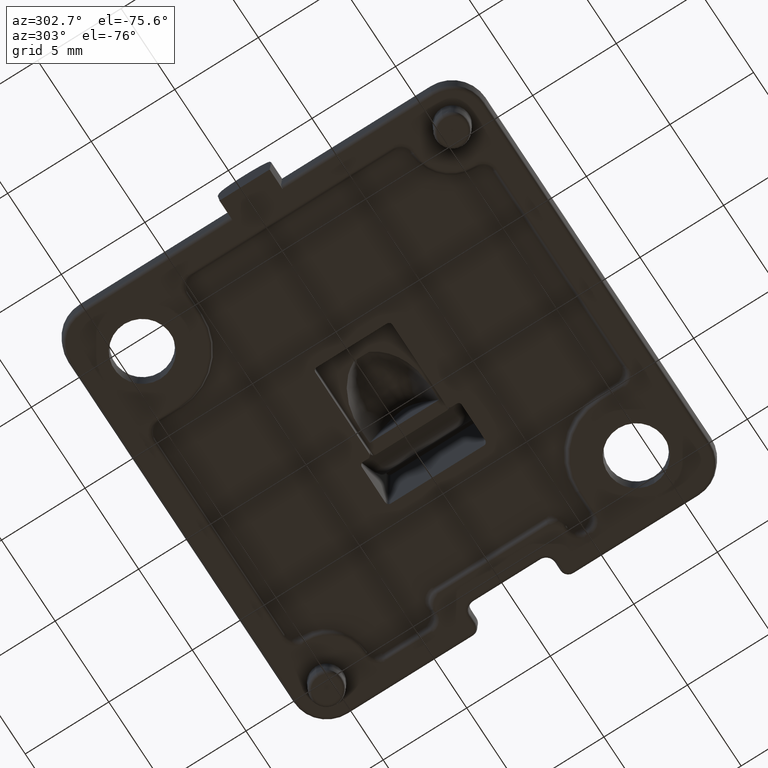
[diagram: clean part render]
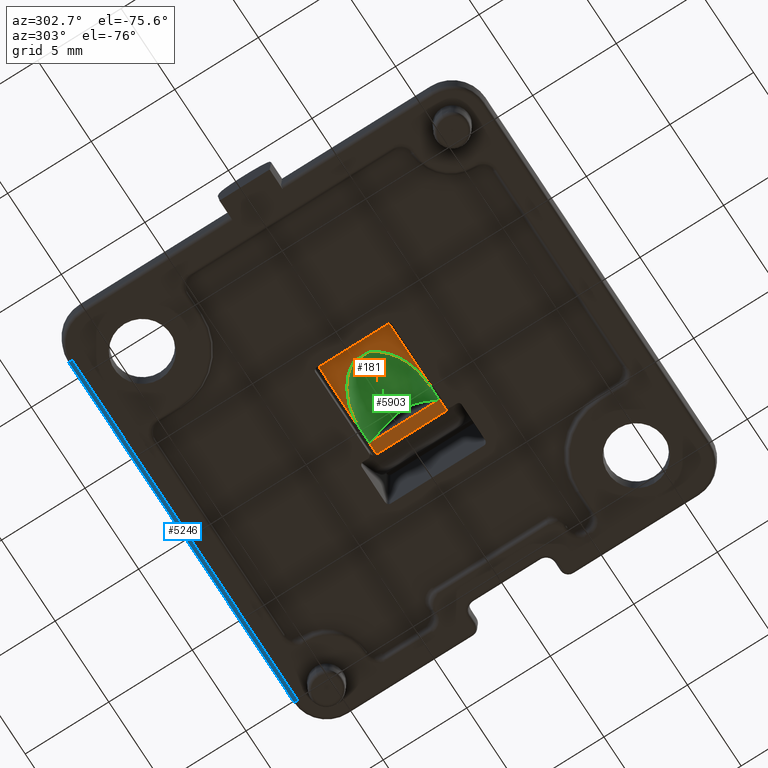
[diagram: same view with three faces highlighted in distinct colors, each labeled with its STEP entity id]
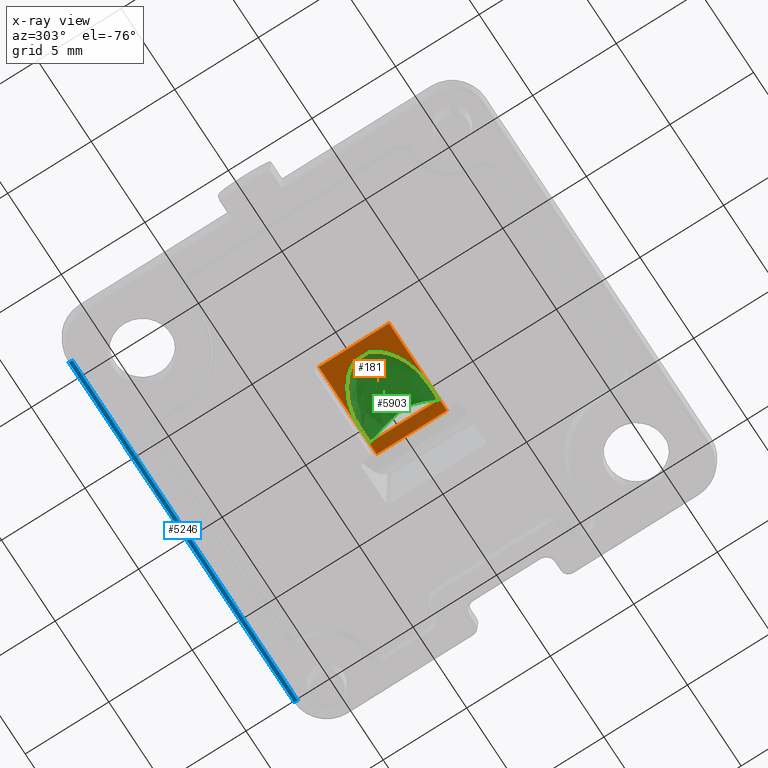
[diagram: x-ray of the same camera — body ghosted, the three highlighted faces saturated]
A machine part, auxiliary view with three faces highlighted in distinct colors.
The next image is the same camera in x-ray (body ghosted, the three faces saturated) — at least one of them is partly hidden behind the body in this view.
Their STEP definitions:

[orange] entity #181 — the highlighted planar face has unit normal (-0, 0, 1).
#21 = ORIENTED_EDGE ( 'NONE', *, *, #675, .F. ) ;
#98 = FACE_OUTER_BOUND ( 'NONE', #4128, .T. ) ;
#106 = ORIENTED_EDGE ( 'NONE', *, *, #2377, .F. ) ;
#132 = CARTESIAN_POINT ( 'NONE',  ( -2.551362578313829400, -0.5375325873398650900, 1.000000001384908600 ) ) ;
#160 = CARTESIAN_POINT ( 'NONE',  ( 0.4398654048756106500, -2.089124009935294800, 1.000000000000000000 ) ) ;
#181 = ADVANCED_FACE ( 'NONE', ( #98, #4840 ), #6382, .F. ) ;
#288 = DIRECTION ( 'NONE',  ( 0.0000000000000000000, 1.000000000000000000, -0.0000000000000000000 ) ) ;
#438 = CARTESIAN_POINT ( 'NONE',  ( 0.4416346818592206700, 2.089128448559774800, 1.000000000000000200 ) ) ;
#467 = CARTESIAN_POINT ( 'NONE',  ( -2.505399132952214700, 0.6226615378636016800, 1.000000000000000400 ) ) ;
#526 = CARTESIAN_POINT ( 'NONE',  ( 2.083844977349171400, -2.099999999999998300, 1.000000000000000000 ) ) ;
#675 = EDGE_CURVE ( 'NONE', #2649, #4487, #7455, .T. ) ;
#772 = CARTESIAN_POINT ( 'NONE',  ( 1.015943396140486900, -2.084362827228719400, 1.000000000000000700 ) ) ;
#929 = ORIENTED_EDGE ( 'NONE', *, *, #5980, .T. ) ;
#1055 = CARTESIAN_POINT ( 'NONE',  ( -0.1314247581270658000, 2.050216328691501400, 1.000000000000000400 ) ) ;
#1083 = CARTESIAN_POINT ( 'NONE',  ( -2.600000000000001000, 0.4555592982445399500, 1.000000001387453900 ) ) ;
#1090 = EDGE_CURVE ( 'NONE', #5385, #7040, #4049, .T. ) ;
#1124 = CARTESIAN_POINT ( 'NONE',  ( 2.083844977349171400, -3.000000000000000000, 1.000000000000000000 ) ) ;
#1360 = CARTESIAN_POINT ( 'NONE',  ( -2.505759766047883600, -0.6219903945672702300, 1.000000000000000000 ) ) ;
#1388 = CARTESIAN_POINT ( 'NONE',  ( 1.400000000000000100, -2.078827333284483100, 1.000003078068502300 ) ) ;
#1491 = ORIENTED_EDGE ( 'NONE', *, *, #1090, .T. ) ;
#1569 = DIRECTION ( 'NONE',  ( 0.0000000000000000000, -1.000000000000000000, 0.0000000000000000000 ) ) ;
#1672 = CARTESIAN_POINT ( 'NONE',  ( -0.6929354770036748600, 1.930882499256594100, 1.000000000000000000 ) ) ;
#1741 = DIRECTION ( 'NONE',  ( 0.0000000000000000000, 1.000000000000000000, 0.0000000000000000000 ) ) ;
#1773 = ORIENTED_EDGE ( 'NONE', *, *, #2830, .T. ) ;
#1885 = VERTEX_POINT ( 'NONE', #7165 ) ;
#1983 = CARTESIAN_POINT ( 'NONE',  ( -2.349437699600407400, -0.8594847207898653800, 1.000000000000634800 ) ) ;
#2166 = DIRECTION ( 'NONE',  ( -0.0000000000000000000, 0.0000000000000000000, 1.000000000000000000 ) ) ;
#2170 = VERTEX_POINT ( 'NONE', #3325 ) ;
#2188 = DIRECTION ( 'NONE',  ( 0.0000000000000000000, 1.000000000000000000, 0.0000000000000000000 ) ) ;
#2194 = CARTESIAN_POINT ( 'NONE',  ( -3.299999999999999800, 2.100000000000000500, 1.000000000000000000 ) ) ;
#2288 = CARTESIAN_POINT ( 'NONE',  ( -1.224724005008662300, 1.732614029141649600, 0.9999999999999997800 ) ) ;
#2377 = EDGE_CURVE ( 'NONE', #3214, #1885, #5495, .T. ) ;
#2449 = ORIENTED_EDGE ( 'NONE', *, *, #7025, .F. ) ;
#2601 = CARTESIAN_POINT ( 'NONE',  ( -2.032606626245931000, -1.210368962242489600, 0.9999999999999983300 ) ) ;
#2649 = VERTEX_POINT ( 'NONE', #3892 ) ;
#2830 = EDGE_CURVE ( 'NONE', #2170, #4487, #3062, .T. ) ;
#2879 = CARTESIAN_POINT ( 'NONE',  ( 1.399999999999999900, 2.078822441818898100, 1.000000000000000000 ) ) ;
#2908 = CARTESIAN_POINT ( 'NONE',  ( -1.724738149197306800, 1.450752585485082200, 1.000000000000000200 ) ) ;
#3062 = B_SPLINE_CURVE_WITH_KNOTS ( 'NONE', 3,
 ( #2879, #7240, #7860, #4140, #438, #4759, #1055, #5393, #1672, #6019, #2288, #6647, #2908, #7260, #3541, #7889, #4170, #467, #4791, #1083 ),
 .UNSPECIFIED., .F., .F.,
 ( 4, 2, 2, 2, 2, 2, 2, 2, 2, 4 ),
 ( 0.0000000000000000000, 0.0005749200755589800000, 0.001149840151117960000, 0.001724760226676940100, 0.002299680302235920000, 0.002874600377794900100, 0.003449520453353880200, 0.004024440528912859500, 0.004311900566692349800, 0.004599360604471838300 ),
 .UNSPECIFIED. ) ;
#3214 = VERTEX_POINT ( 'NONE', #526 ) ;
#3221 = CARTESIAN_POINT ( 'NONE',  ( -1.237978495784666900, -1.742455570495600400, 0.9999999999999997800 ) ) ;
#3325 = CARTESIAN_POINT ( 'NONE',  ( 1.399999999999999900, 2.078822441818898100, 1.000000000000000000 ) ) ;
#3541 = CARTESIAN_POINT ( 'NONE',  ( -2.163970747072603300, 1.085853524967739900, 0.9999999999999749100 ) ) ;
#3547 = CARTESIAN_POINT ( 'NONE',  ( 1.400000000000000100, -2.078827333284483100, 1.000003078068502300 ) ) ;
#3855 = CARTESIAN_POINT ( 'NONE',  ( -0.1361482349535843800, -2.061044881113214700, 1.000000000000000000 ) ) ;
#3892 = CARTESIAN_POINT ( 'NONE',  ( -2.599999999999998300, -0.4555441747628767300, 1.000000001384908600 ) ) ;
#4004 = VECTOR ( 'NONE', #7774, 1000.000000000000000 ) ;
#4049 = LINE ( 'NONE', #4621, #7360 ) ;
#4122 = LINE ( 'NONE', #7833, #7233 ) ;
#4128 = EDGE_LOOP ( 'NONE', ( #106, #929, #1491, #6622 ) ) ;
#4140 = CARTESIAN_POINT ( 'NONE',  ( 0.6334677064043052800, 2.088556711479546000, 0.9999999999999993300 ) ) ;
#4170 = CARTESIAN_POINT ( 'NONE',  ( -2.403030146143409200, 0.7846258030463363300, 1.000000000000000400 ) ) ;
#4254 = EDGE_CURVE ( 'NONE', #7040, #1885, #4122, .T. ) ;
#4448 = CARTESIAN_POINT ( 'NONE',  ( -2.599999999999998300, -0.4555441747628767300, 1.000000001384908600 ) ) ;
#4480 = CARTESIAN_POINT ( 'NONE',  ( 0.6318893846323526700, -2.088566448932226200, 1.000000000000000700 ) ) ;
#4486 = CARTESIAN_POINT ( 'NONE',  ( -2.600000000000001000, 0.4555592982445399500, 1.000000001387453900 ) ) ;
#4487 = VERTEX_POINT ( 'NONE', #4486 ) ;
#4621 = CARTESIAN_POINT ( 'NONE',  ( -3.299999999999999800, 2.300000000000000700, 1.000000000000000000 ) ) ;
#4659 = CARTESIAN_POINT ( 'NONE',  ( 1.399999999999999900, 0.0000000000000000000, 1.000000000000000000 ) ) ;
#4759 = CARTESIAN_POINT ( 'NONE',  ( 0.05874868516591804500, 2.070626627170135700, 1.000000000000000200 ) ) ;
#4791 = CARTESIAN_POINT ( 'NONE',  ( -2.551067681225207600, 0.5380310598972224400, 1.000000000000000900 ) ) ;
#4840 = FACE_BOUND ( 'NONE', #7395, .T. ) ;
#5030 = AXIS2_PLACEMENT_3D ( 'NONE', #5153, #2166, #6519 ) ;
#5110 = CARTESIAN_POINT ( 'NONE',  ( 1.207972528265164100, -2.081175870839364200, 0.9999999999999950000 ) ) ;
#5153 = CARTESIAN_POINT ( 'NONE',  ( 0.0000000000000000000, 0.0000000000000000000, 1.000000000000000000 ) ) ;
#5309 = CARTESIAN_POINT ( 'NONE',  ( -3.500000000000000000, -2.099999999999999600, 1.000000000000000000 ) ) ;
#5315 = CARTESIAN_POINT ( 'NONE',  ( -2.600000000000000100, 0.7142934504074105500, 1.000000000000000000 ) ) ;
#5385 = VERTEX_POINT ( 'NONE', #7156 ) ;
#5393 = CARTESIAN_POINT ( 'NONE',  ( -0.5083900547786782700, 1.979671559242213400, 1.000000000000000400 ) ) ;
#5495 = LINE ( 'NONE', #1124, #7146 ) ;
#5706 = CARTESIAN_POINT ( 'NONE',  ( -2.404371813912273800, -0.7826202028996044300, 1.000000000000000200 ) ) ;
#5738 = LINE ( 'NONE', #4659, #7583 ) ;
#5809 = VECTOR ( 'NONE', #2188, 1000.000000000000000 ) ;
#5980 = EDGE_CURVE ( 'NONE', #3214, #5385, #7114, .T. ) ;
#6019 = CARTESIAN_POINT ( 'NONE',  ( -1.050817415593900300, 1.807387945257196600, 1.000000000000000000 ) ) ;
#6331 = CARTESIAN_POINT ( 'NONE',  ( -2.170533345352927000, -1.078602849958401300, 1.000000000000634800 ) ) ;
#6382 = PLANE ( 'NONE',  #5030 ) ;
#6445 = EDGE_CURVE ( 'NONE', #2649, #7714, #6746, .T. ) ;
#6519 = DIRECTION ( 'NONE',  ( 1.000000000000000000, 0.0000000000000000000, 0.0000000000000000000 ) ) ;
#6622 = ORIENTED_EDGE ( 'NONE', *, *, #4254, .T. ) ;
#6623 = DIRECTION ( 'NONE',  ( 1.000000000000000000, 1.376764663473656700E-016, -0.0000000000000000000 ) ) ;
#6647 = CARTESIAN_POINT ( 'NONE',  ( -1.561511833604804400, 1.554537706405162600, 0.9999999999999995600 ) ) ;
#6703 = ORIENTED_EDGE ( 'NONE', *, *, #6445, .T. ) ;
#6746 = B_SPLINE_CURVE_WITH_KNOTS ( 'NONE', 3,
 ( #4448, #132, #1360, #5706, #1983, #6331, #2601, #6958, #3221, #7576, #3855, #160, #4480, #772, #5110, #1388 ),
 .UNSPECIFIED., .F., .F.,
 ( 4, 2, 2, 2, 2, 2, 2, 4 ),
 ( 0.0000000000000000000, 0.0002828768409019454500, 0.0005657536818038909100, 0.001131507363607781800, 0.002263014727215564500, 0.003394522090823346800, 0.003960275772627238300, 0.004526029454431129900 ),
 .UNSPECIFIED. ) ;
#6958 = CARTESIAN_POINT ( 'NONE',  ( -1.577541181476175100, -1.566638844034883500, 0.9999999999999985600 ) ) ;
#7025 = EDGE_CURVE ( 'NONE', #2170, #7714, #5738, .T. ) ;
#7040 = VERTEX_POINT ( 'NONE', #2194 ) ;
#7114 = LINE ( 'NONE', #5309, #4004 ) ;
#7146 = VECTOR ( 'NONE', #1741, 1000.000000000000000 ) ;
#7156 = CARTESIAN_POINT ( 'NONE',  ( -3.299999999999999800, -2.099999999999999600, 1.000000000000000000 ) ) ;
#7165 = CARTESIAN_POINT ( 'NONE',  ( 2.083844977349171400, 2.100000000000001900, 1.000000000000000000 ) ) ;
#7233 = VECTOR ( 'NONE', #6623, 1000.000000000000000 ) ;
#7240 = CARTESIAN_POINT ( 'NONE',  ( 1.208366613020389600, 2.081170960081868900, 0.9999999999991812100 ) ) ;
#7260 = CARTESIAN_POINT ( 'NONE',  ( -2.024893220620447300, 1.217024777793791500, 1.000000000000000000 ) ) ;
#7360 = VECTOR ( 'NONE', #288, 1000.000000000000000 ) ;
#7395 = EDGE_LOOP ( 'NONE', ( #6703, #2449, #1773, #21 ) ) ;
#7455 = LINE ( 'NONE', #5315, #5809 ) ;
#7576 = CARTESIAN_POINT ( 'NONE',  ( -0.5119351141686814300, -1.993686842024795100, 1.000000000000000200 ) ) ;
#7583 = VECTOR ( 'NONE', #1569, 1000.000000000000000 ) ;
#7714 = VERTEX_POINT ( 'NONE', #3547 ) ;
#7774 = DIRECTION ( 'NONE',  ( -1.000000000000000000, -2.065146995210484700E-016, 0.0000000000000000000 ) ) ;
#7833 = CARTESIAN_POINT ( 'NONE',  ( -2.891205793294680800E-016, 2.100000000000001000, 1.000000000000000000 ) ) ;
#7860 = CARTESIAN_POINT ( 'NONE',  ( 1.016735989526128500, 2.084346495771741000, 0.9999999999999993300 ) ) ;
#7889 = CARTESIAN_POINT ( 'NONE',  ( -2.347229598586235700, 0.8625547943504097100, 0.9999999999999751300 ) ) ;

[blue] entity #5246 — the highlighted cylindrical surface (edge-blend (fillet) strip) has radius 0.25 mm, axis along (1, -0, 0).
#77 = DIRECTION ( 'NONE',  ( 0.0000000000000000000, 0.0000000000000000000, -1.000000000000000000 ) ) ;
#344 = LINE ( 'NONE', #2221, #5083 ) ;
#386 = EDGE_LOOP ( 'NONE', ( #4482, #7474, #5085, #4481 ) ) ;
#796 = DIRECTION ( 'NONE',  ( 1.000000000000000000, 0.0000000000000000000, 0.0000000000000000000 ) ) ;
#922 = CARTESIAN_POINT ( 'NONE',  ( 10.50000000000000000, 12.46652058966291000, 0.2412751258243749100 ) ) ;
#1146 = CARTESIAN_POINT ( 'NONE',  ( -10.50000000000000200, 12.21667288290813500, 0.0000000000000000000 ) ) ;
#1397 = EDGE_CURVE ( 'NONE', #7192, #4460, #7254, .T. ) ;
#1866 = EDGE_CURVE ( 'NONE', #4193, #4460, #6964, .T. ) ;
#2161 = CYLINDRICAL_SURFACE ( 'NONE', #6929, 0.2500000000000000000 ) ;
#2196 = DIRECTION ( 'NONE',  ( -1.000000000000000000, 0.0000000000000000000, 0.0000000000000000000 ) ) ;
#2221 = CARTESIAN_POINT ( 'NONE',  ( 10.49999999999999600, 12.21667288290813500, 0.0000000000000000000 ) ) ;
#2930 = VERTEX_POINT ( 'NONE', #5192 ) ;
#3295 = DIRECTION ( 'NONE',  ( 1.000000000000000000, -0.0000000000000000000, 0.0000000000000000000 ) ) ;
#3719 = CIRCLE ( 'NONE', #7917, 0.2500000000000000000 ) ;
#3763 = DIRECTION ( 'NONE',  ( 1.000000000000000000, 0.0000000000000000000, 0.0000000000000000000 ) ) ;
#4003 = AXIS2_PLACEMENT_3D ( 'NONE', #7489, #3763, #77 ) ;
#4193 = VERTEX_POINT ( 'NONE', #922 ) ;
#4460 = VERTEX_POINT ( 'NONE', #5053 ) ;
#4481 = ORIENTED_EDGE ( 'NONE', *, *, #4655, .F. ) ;
#4482 = ORIENTED_EDGE ( 'NONE', *, *, #1397, .T. ) ;
#4504 = CARTESIAN_POINT ( 'NONE',  ( 10.50000000000000000, 12.21667288290813500, 0.2500000000000000000 ) ) ;
#4655 = EDGE_CURVE ( 'NONE', #7192, #2930, #344, .T. ) ;
#4976 = EDGE_CURVE ( 'NONE', #2930, #4193, #3719, .T. ) ;
#5053 = CARTESIAN_POINT ( 'NONE',  ( -10.50000000000000200, 12.46652058966291000, 0.2412751258243749100 ) ) ;
#5083 = VECTOR ( 'NONE', #7200, 1000.000000000000000 ) ;
#5085 = ORIENTED_EDGE ( 'NONE', *, *, #4976, .F. ) ;
#5132 = DIRECTION ( 'NONE',  ( 0.0000000000000000000, 0.0000000000000000000, -1.000000000000000000 ) ) ;
#5192 = CARTESIAN_POINT ( 'NONE',  ( 10.50000000000000000, 12.21667288290813300, 0.0000000000000000000 ) ) ;
#5246 = ADVANCED_FACE ( 'NONE', ( #5467 ), #2161, .T. ) ;
#5467 = FACE_OUTER_BOUND ( 'NONE', #386, .T. ) ;
#6551 = CARTESIAN_POINT ( 'NONE',  ( -10.49999999999999800, 12.46652058966291000, 0.2412751258243747700 ) ) ;
#6773 = VECTOR ( 'NONE', #2196, 1000.000000000000000 ) ;
#6929 = AXIS2_PLACEMENT_3D ( 'NONE', #7029, #3295, #7653 ) ;
#6964 = LINE ( 'NONE', #6551, #6773 ) ;
#7029 = CARTESIAN_POINT ( 'NONE',  ( 0.0000000000000000000, 12.21667288290813500, 0.2500000000000000000 ) ) ;
#7192 = VERTEX_POINT ( 'NONE', #1146 ) ;
#7200 = DIRECTION ( 'NONE',  ( 1.000000000000000000, -0.0000000000000000000, -0.0000000000000000000 ) ) ;
#7254 = CIRCLE ( 'NONE', #4003, 0.2500000000000000000 ) ;
#7474 = ORIENTED_EDGE ( 'NONE', *, *, #1866, .F. ) ;
#7489 = CARTESIAN_POINT ( 'NONE',  ( -10.50000000000000200, 12.21667288290813700, 0.2500000000000000000 ) ) ;
#7653 = DIRECTION ( 'NONE',  ( 0.0000000000000000000, 0.0000000000000000000, -1.000000000000000000 ) ) ;
#7917 = AXIS2_PLACEMENT_3D ( 'NONE', #4504, #796, #5132 ) ;

[green] entity #5903 — the highlighted face is a freeform B-spline surface patch.
#35 = CARTESIAN_POINT ( 'NONE',  ( 1.399999999999998400, -1.034620056477093300, 2.706369694295176500 ) ) ;
#132 = CARTESIAN_POINT ( 'NONE',  ( -2.551362578313829400, -0.5375325873398650900, 1.000000001384908600 ) ) ;
#148 = CARTESIAN_POINT ( 'NONE',  ( -0.1904969153247295700, 0.06538948513618340900, 2.706643667075361300 ) ) ;
#160 = CARTESIAN_POINT ( 'NONE',  ( 0.4398654048756106500, -2.089124009935294800, 1.000000000000000000 ) ) ;
#175 = CARTESIAN_POINT ( 'NONE',  ( -1.594004322233279800, -0.1216709227126778500, 1.985412331033638700 ) ) ;
#194 = CARTESIAN_POINT ( 'NONE',  ( -2.328564381378580800, -0.2103456272117487100, 1.443528980120452700 ) ) ;
#224 = CARTESIAN_POINT ( 'NONE',  ( -2.599999999999999200, -0.3216530242028597400, 1.103147553051419900 ) ) ;
#240 = CARTESIAN_POINT ( 'NONE',  ( 1.400000000000001500, 1.965218559905656400, 1.200000000000000000 ) ) ;
#250 = CARTESIAN_POINT ( 'NONE',  ( 1.400000000000000800, -1.785018995701406700, 1.515402232516553000 ) ) ;
#276 = CARTESIAN_POINT ( 'NONE',  ( 0.8920790226710861900, -2.204164891798988900, 0.8158330841916560100 ) ) ;
#295 = CARTESIAN_POINT ( 'NONE',  ( 1.400000000000000100, -2.078827333284483100, 1.000003078068502300 ) ) ;
#328 = CARTESIAN_POINT ( 'NONE',  ( 1.400000000000000600, 1.059952119404315000E-012, 3.607365741558266500 ) ) ;
#379 = CARTESIAN_POINT ( 'NONE',  ( -1.856264670589807200, 1.597617297356509300, 0.8117922403130398700 ) ) ;
#401 = CARTESIAN_POINT ( 'NONE',  ( -2.452306224391981500, 0.7499618934863586700, 0.9848459703153188400 ) ) ;
#429 = CARTESIAN_POINT ( 'NONE',  ( -2.600000000000001400, 0.4141531136724342900, 1.037103924562102300 ) ) ;
#438 = CARTESIAN_POINT ( 'NONE',  ( 0.4416346818592206700, 2.089128448559774800, 1.000000000000000200 ) ) ;
#463 = CARTESIAN_POINT ( 'NONE',  ( 1.400000000000001900, 0.5897079925915302800, 3.251777779523302900 ) ) ;
#467 = CARTESIAN_POINT ( 'NONE',  ( -2.505399132952214700, 0.6226615378636016800, 1.000000000000000400 ) ) ;
#517 = ORIENTED_EDGE ( 'NONE', *, *, #2830, .F. ) ;
#519 = CARTESIAN_POINT ( 'NONE',  ( -2.596201636890921100, -0.3244178817043065200, 1.108770888052115700 ) ) ;
#556 = B_SPLINE_CURVE_WITH_KNOTS ( 'NONE', 3,
 ( #6567, #2203, #4729, #1028, #5358 ),
 .UNSPECIFIED., .F., .F.,
 ( 4, 1, 4 ),
 ( 0.09199499275522322900, 0.1249999833939984400, 0.1532564165732584500 ),
 .UNSPECIFIED. ) ;
#599 = CARTESIAN_POINT ( 'NONE',  ( 1.400000000000000600, 1.059952119404315000E-012, 3.607365741558266500 ) ) ;
#602 = CARTESIAN_POINT ( 'NONE',  ( 1.399999999999998100, 0.4192410327396390300, 3.414109711865772800 ) ) ;
#653 = CARTESIAN_POINT ( 'NONE',  ( 1.399999999999999700, -1.546009148568296700, 1.919305430619758100 ) ) ;
#760 = CARTESIAN_POINT ( 'NONE',  ( -2.316484497036492400, 0.02366848012338813200, 1.483515499724083400 ) ) ;
#772 = CARTESIAN_POINT ( 'NONE',  ( 1.015943396140486900, -2.084362827228719400, 1.000000000000000700 ) ) ;
#786 = CARTESIAN_POINT ( 'NONE',  ( -2.600000000000000100, -0.05655092375330610800, 1.197797949005783100 ) ) ;
#814 = CARTESIAN_POINT ( 'NONE',  ( 1.400000000000001700, -0.7975929199102480500, 3.017990566941854100 ) ) ;
#845 = CARTESIAN_POINT ( 'NONE',  ( 0.9075341961361643700, -1.314196266603316700, 2.100023376443845600 ) ) ;
#867 = CARTESIAN_POINT ( 'NONE',  ( -0.2013357124789100200, -1.940772643873703900, 1.482327859374230000 ) ) ;
#894 = CARTESIAN_POINT ( 'NONE',  ( -1.856264638536174300, -1.597617867988562000, 0.8117908884838813700 ) ) ;
#899 = B_SPLINE_CURVE_WITH_KNOTS ( 'NONE', 3,
 ( #2123, #5851, #2744, #4001, #295 ),
 .UNSPECIFIED., .F., .F.,
 ( 4, 1, 4 ),
 ( 0.8467498660023292700, 0.8749999833940244100, 0.9080054629422100700 ),
 .UNSPECIFIED. ) ;
#994 = CARTESIAN_POINT ( 'NONE',  ( -2.600000000000000100, 0.6933383294436894500, 0.7313916971084792900 ) ) ;
#1026 = CARTESIAN_POINT ( 'NONE',  ( 1.400000000000000100, 1.546012999241781300, 1.919299048403746400 ) ) ;
#1028 = CARTESIAN_POINT ( 'NONE',  ( 1.399999999999999700, 1.982735192571148500, 1.169278671004183400 ) ) ;
#1047 = CARTESIAN_POINT ( 'NONE',  ( 0.9064437069831898800, 1.047298138877854800, 2.448424700833253400 ) ) ;
#1055 = CARTESIAN_POINT ( 'NONE',  ( -0.1314247581270658000, 2.050216328691501400, 1.000000000000000400 ) ) ;
#1075 = CARTESIAN_POINT ( 'NONE',  ( -0.2032167972413854200, 0.6145222779348191700, 2.679182349381769200 ) ) ;
#1083 = CARTESIAN_POINT ( 'NONE',  ( -2.600000000000001000, 0.4555592982445399500, 1.000000001387453900 ) ) ;
#1102 = FACE_OUTER_BOUND ( 'NONE', #1370, .T. ) ;
#1138 = CARTESIAN_POINT ( 'NONE',  ( -2.592765254904172400, -0.08528706541143921100, 1.207175993001371000 ) ) ;
#1180 = CARTESIAN_POINT ( 'NONE',  ( 1.400000000000000600, -1.965248003363756900, 1.199993374040019300 ) ) ;
#1228 = CARTESIAN_POINT ( 'NONE',  ( 1.399999999999999900, 0.07822282566607888200, 3.607365741558453500 ) ) ;
#1267 = CARTESIAN_POINT ( 'NONE',  ( 1.400000000000000100, -1.905251482880876400, 1.305172604836144900 ) ) ;
#1360 = CARTESIAN_POINT ( 'NONE',  ( -2.505759766047883600, -0.6219903945672702300, 1.000000000000000000 ) ) ;
#1370 = EDGE_LOOP ( 'NONE', ( #517, #6803, #4400, #6912, #1628, #4520, #4798 ) ) ;
#1371 = CARTESIAN_POINT ( 'NONE',  ( 1.399999999999999900, -0.07822187543106891300, 3.607365741558453500 ) ) ;
#1388 = CARTESIAN_POINT ( 'NONE',  ( 1.400000000000000100, -2.078827333284483100, 1.000003078068502300 ) ) ;
#1403 = CARTESIAN_POINT ( 'NONE',  ( 0.8768279915767730500, -0.4234623280613563600, 3.106199468128606700 ) ) ;
#1424 = CARTESIAN_POINT ( 'NONE',  ( -0.2069944173161106800, -0.8807237367336955300, 2.597508529415770700 ) ) ;
#1448 = CARTESIAN_POINT ( 'NONE',  ( -1.720228464655341000, -1.126674720036460000, 1.829282045616710700 ) ) ;
#1479 = CARTESIAN_POINT ( 'NONE',  ( -2.452306403339364200, -0.7499532407282185600, 0.9848730516226496000 ) ) ;
#1511 = CARTESIAN_POINT ( 'NONE',  ( -2.600000000000000100, -0.6933383901988361400, 0.7313916060945853100 ) ) ;
#1606 = CARTESIAN_POINT ( 'NONE',  ( 0.8968679430016373000, 2.047697804081023900, 1.049077430098183100 ) ) ;
#1628 = ORIENTED_EDGE ( 'NONE', *, *, #3792, .T. ) ;
#1631 = CARTESIAN_POINT ( 'NONE',  ( -0.2045001659011044800, 1.737864180956010900, 1.838599155038944400 ) ) ;
#1664 = CARTESIAN_POINT ( 'NONE',  ( -1.684197341259471700, 0.8857521868609508100, 1.999250144198304200 ) ) ;
#1672 = CARTESIAN_POINT ( 'NONE',  ( -0.6929354770036748600, 1.930882499256594100, 1.000000000000000000 ) ) ;
#1694 = CARTESIAN_POINT ( 'NONE',  ( -2.328564741136760500, 0.2103602047467894900, 1.443528582433454700 ) ) ;
#1755 = CARTESIAN_POINT ( 'NONE',  ( -2.593568960710466200, 0.1698180014971683900, 1.184160869963296200 ) ) ;
#1817 = CARTESIAN_POINT ( 'NONE',  ( 1.400000000000001500, 1.965218559905656400, 1.200000000000000000 ) ) ;
#1965 = CARTESIAN_POINT ( 'NONE',  ( 0.8627439943164898500, 0.2319137040299061000, 3.239130603068029100 ) ) ;
#1983 = CARTESIAN_POINT ( 'NONE',  ( -2.349437699600407400, -0.8594847207898653800, 1.000000000000634800 ) ) ;
#1998 = CARTESIAN_POINT ( 'NONE',  ( -0.1904968909609777700, -0.06538952473467764300, 2.706643669545583100 ) ) ;
#2023 = CARTESIAN_POINT ( 'NONE',  ( -1.611666540089150100, -0.2744768857620216200, 2.038710112855379700 ) ) ;
#2047 = CARTESIAN_POINT ( 'NONE',  ( -2.340817800495386800, -0.3004464467159115300, 1.403270292878707500 ) ) ;
#2077 = CARTESIAN_POINT ( 'NONE',  ( -2.599999999999997400, -0.4141210978205535100, 1.037106039254715600 ) ) ;
#2102 = CARTESIAN_POINT ( 'NONE',  ( 1.399999999999999900, -2.018125358602086200, 1.108037108266355600 ) ) ;
#2123 = CARTESIAN_POINT ( 'NONE',  ( 1.400000000000000600, -1.965248003363756900, 1.199993374040019300 ) ) ;
#2126 = CARTESIAN_POINT ( 'NONE',  ( 0.8896845646438955600, -2.283795595275887700, 0.6999999999999998400 ) ) ;
#2170 = VERTEX_POINT ( 'NONE', #3325 ) ;
#2202 = CARTESIAN_POINT ( 'NONE',  ( -0.1941838174687763900, 2.212256970444276000, 0.7000000000000001800 ) ) ;
#2203 = CARTESIAN_POINT ( 'NONE',  ( 1.399999999999999500, 2.058459521844546300, 1.035938571552278600 ) ) ;
#2224 = CARTESIAN_POINT ( 'NONE',  ( -1.833714509957632900, 1.559764491573429700, 1.028591022876279100 ) ) ;
#2254 = CARTESIAN_POINT ( 'NONE',  ( -2.420938627470962800, 0.6430162155381927700, 1.115035287418835600 ) ) ;
#2283 = CARTESIAN_POINT ( 'NONE',  ( -2.600000000000000500, 0.3216848857193153100, 1.103148949183583500 ) ) ;
#2288 = CARTESIAN_POINT ( 'NONE',  ( -1.224724005008662300, 1.732614029141649600, 0.9999999999999997800 ) ) ;
#2302 = CARTESIAN_POINT ( 'NONE',  ( 1.399999999999998100, 0.4192410327396390300, 3.414109711865772800 ) ) ;
#2376 = CARTESIAN_POINT ( 'NONE',  ( -2.597964857172244000, 0.3925077787366327800, 1.058278865482530800 ) ) ;
#2469 = B_SPLINE_CURVE_WITH_KNOTS ( 'NONE', 3,
 ( #3591, #4233, #519, #4849, #1138, #5472, #1755, #6113, #2376, #6733 ),
 .UNSPECIFIED., .F., .F.,
 ( 4, 2, 2, 2, 4 ),
 ( 0.0000000000000000000, 0.0002545123394619577600, 0.0005090246789239155200, 0.0007635370183858732300, 0.001018049357847831000 ),
 .UNSPECIFIED. ) ;
#2585 = CARTESIAN_POINT ( 'NONE',  ( -1.594004484565072300, 0.1216690383438121200, 1.985413530026177900 ) ) ;
#2601 = CARTESIAN_POINT ( 'NONE',  ( -2.032606626245931000, -1.210368962242489600, 0.9999999999999983300 ) ) ;
#2613 = CARTESIAN_POINT ( 'NONE',  ( -2.316484496361555000, -0.02366849445652066000, 1.483515506877873600 ) ) ;
#2643 = CARTESIAN_POINT ( 'NONE',  ( -2.600000000000000500, -0.1124180214635664100, 1.188440413430267100 ) ) ;
#2649 = VERTEX_POINT ( 'NONE', #3892 ) ;
#2669 = CARTESIAN_POINT ( 'NONE',  ( 1.399999999999998400, -1.034620056477093300, 2.706369694295176500 ) ) ;
#2690 = CARTESIAN_POINT ( 'NONE',  ( 0.9054986239151510100, -1.567131666180289700, 1.749803419466045200 ) ) ;
#2719 = CARTESIAN_POINT ( 'NONE',  ( -0.1980051716599557400, -2.100947299399858400, 1.102049900510073700 ) ) ;
#2744 = CARTESIAN_POINT ( 'NONE',  ( 1.400000000000000100, -2.020652801103938400, 1.102632880877121300 ) ) ;
#2747 = CARTESIAN_POINT ( 'NONE',  ( -1.867539750905894600, -1.608059805024356000, 0.7000000000000015100 ) ) ;
#2819 = CARTESIAN_POINT ( 'NONE',  ( -2.508837652771434400, 0.9445432564400572100, 0.6999999999999998400 ) ) ;
#2830 = EDGE_CURVE ( 'NONE', #2170, #4487, #3062, .T. ) ;
#2854 = CARTESIAN_POINT ( 'NONE',  ( -2.600000000000000100, 0.6493652550815068900, 0.7928059142725482100 ) ) ;
#2876 = CARTESIAN_POINT ( 'NONE',  ( 1.399999999999997500, 1.297302831907941200, 2.317420820640629500 ) ) ;
#2879 = CARTESIAN_POINT ( 'NONE',  ( 1.399999999999999900, 2.078822441818898100, 1.000000000000000000 ) ) ;
#2900 = CARTESIAN_POINT ( 'NONE',  ( 0.8997436080808503000, 0.8067504301118453300, 2.733945815498857200 ) ) ;
#2908 = CARTESIAN_POINT ( 'NONE',  ( -1.724738149197306800, 1.450752585485082200, 1.000000000000000200 ) ) ;
#2933 = CARTESIAN_POINT ( 'NONE',  ( -0.1989146095371324400, 0.4074257386149652300, 2.712050866211553200 ) ) ;
#3051 = CARTESIAN_POINT ( 'NONE',  ( 1.400000000000000100, 1.546012999241781300, 1.919299048403746400 ) ) ;
#3062 = B_SPLINE_CURVE_WITH_KNOTS ( 'NONE', 3,
 ( #2879, #7240, #7860, #4140, #438, #4759, #1055, #5393, #1672, #6019, #2288, #6647, #2908, #7260, #3541, #7889, #4170, #467, #4791, #1083 ),
 .UNSPECIFIED., .F., .F.,
 ( 4, 2, 2, 2, 2, 2, 2, 2, 2, 4 ),
 ( 0.0000000000000000000, 0.0005749200755589800000, 0.001149840151117960000, 0.001724760226676940100, 0.002299680302235920000, 0.002874600377794900100, 0.003449520453353880200, 0.004024440528912859500, 0.004311900566692349800, 0.004599360604471838300 ),
 .UNSPECIFIED. ) ;
#3094 = CARTESIAN_POINT ( 'NONE',  ( 1.400000000000000400, -0.4192373891337963200, 3.414112731381659000 ) ) ;
#3202 = CARTESIAN_POINT ( 'NONE',  ( -2.600000000000000100, 0.05655232738438720200, 1.197797868351818500 ) ) ;
#3221 = CARTESIAN_POINT ( 'NONE',  ( -1.237978495784666900, -1.742455570495600400, 0.9999999999999997800 ) ) ;
#3232 = CARTESIAN_POINT ( 'NONE',  ( 1.400000000000000800, -0.2297995158579448900, 3.552341991449884200 ) ) ;
#3259 = CARTESIAN_POINT ( 'NONE',  ( 0.8884994135733820200, -0.5960407266039526900, 2.952390243354155300 ) ) ;
#3287 = CARTESIAN_POINT ( 'NONE',  ( -0.2084293707701351300, -1.180859087783334700, 2.432684983244460600 ) ) ;
#3316 = CARTESIAN_POINT ( 'NONE',  ( -1.757718338665313500, -1.316694070350608900, 1.601986158192953100 ) ) ;
#3325 = CARTESIAN_POINT ( 'NONE',  ( 1.399999999999999900, 2.078822441818898100, 1.000000000000000000 ) ) ;
#3345 = CARTESIAN_POINT ( 'NONE',  ( -2.482470745321117900, -0.8508324703932015300, 0.8459749762123375300 ) ) ;
#3364 = CARTESIAN_POINT ( 'NONE',  ( -2.600000000000000100, -0.7142934504074105500, 0.6999999999999999600 ) ) ;
#3449 = CARTESIAN_POINT ( 'NONE',  ( 1.399999999999999700, 2.171777883971827800, 0.8354846792363426200 ) ) ;
#3473 = CARTESIAN_POINT ( 'NONE',  ( 0.9016958723850154700, 1.810368210307671700, 1.399325563544102600 ) ) ;
#3501 = CARTESIAN_POINT ( 'NONE',  ( -0.2070990605275212800, 1.486428153877484600, 2.159139734376174700 ) ) ;
#3532 = CARTESIAN_POINT ( 'NONE',  ( -1.654562081348009300, 0.6452969184247356900, 2.067524075302669600 ) ) ;
#3541 = CARTESIAN_POINT ( 'NONE',  ( -2.163970747072603300, 1.085853524967739900, 0.9999999999999749100 ) ) ;
#3547 = CARTESIAN_POINT ( 'NONE',  ( 1.400000000000000100, -2.078827333284483100, 1.000003078068502300 ) ) ;
#3559 = CARTESIAN_POINT ( 'NONE',  ( -2.321650961314014200, 0.1412064008324456200, 1.466072129493107600 ) ) ;
#3591 = CARTESIAN_POINT ( 'NONE',  ( -2.599999999999998300, -0.4555441747628767300, 1.000000001384908600 ) ) ;
#3680 = CARTESIAN_POINT ( 'NONE',  ( 1.400000000000001900, 1.034625201821803600, 2.706362459162749100 ) ) ;
#3732 = CARTESIAN_POINT ( 'NONE',  ( 1.400000000000001700, -0.7975929199102480500, 3.017990566941854100 ) ) ;
#3792 = EDGE_CURVE ( 'NONE', #4017, #7714, #899, .T. ) ;
#3843 = CARTESIAN_POINT ( 'NONE',  ( 0.8553766488380021300, 0.07892640155207875100, 3.292927290034001000 ) ) ;
#3844 = EDGE_CURVE ( 'NONE', #2170, #6552, #556, .T. ) ;
#3855 = CARTESIAN_POINT ( 'NONE',  ( -0.1361482349535843800, -2.061044881113214700, 1.000000000000000000 ) ) ;
#3867 = CARTESIAN_POINT ( 'NONE',  ( -0.1934423588778159700, -0.1980669818966238100, 2.715626416245293200 ) ) ;
#3889 = CARTESIAN_POINT ( 'NONE',  ( -1.630197621185643000, -0.4339484414749201200, 2.067412592202678500 ) ) ;
#3892 = CARTESIAN_POINT ( 'NONE',  ( -2.599999999999998300, -0.4555441747628767300, 1.000000001384908600 ) ) ;
#3921 = CARTESIAN_POINT ( 'NONE',  ( -2.360898391991783200, -0.4079966748207414200, 1.335718897886404300 ) ) ;
#3948 = CARTESIAN_POINT ( 'NONE',  ( -2.599999999999999200, -0.4990885093632769800, 0.9622207599468294300 ) ) ;
#3974 = CARTESIAN_POINT ( 'NONE',  ( 1.399999999999999900, -2.171777414937920100, 0.8354854916269006700 ) ) ;
#4001 = CARTESIAN_POINT ( 'NONE',  ( 1.400000000000000100, -2.058458971895786900, 1.035939538662090200 ) ) ;
#4017 = VERTEX_POINT ( 'NONE', #1180 ) ;
#4050 = CARTESIAN_POINT ( 'NONE',  ( 0.8896845646438955600, 2.283795595275887700, 0.6999999999999998400 ) ) ;
#4077 = CARTESIAN_POINT ( 'NONE',  ( -0.1954575986195323200, 2.179999953712589400, 0.8357880440143180500 ) ) ;
#4108 = CARTESIAN_POINT ( 'NONE',  ( -1.795885264840576500, 1.459638217847433900, 1.330404824816393800 ) ) ;
#4135 = CARTESIAN_POINT ( 'NONE',  ( -2.389824528399334000, 0.5292780372787272400, 1.233128282653581200 ) ) ;
#4140 = CARTESIAN_POINT ( 'NONE',  ( 0.6334677064043052800, 2.088556711479546000, 0.9999999999999993300 ) ) ;
#4164 = CARTESIAN_POINT ( 'NONE',  ( -2.600000000000000100, 0.2381114125556814100, 1.147164868582484500 ) ) ;
#4170 = CARTESIAN_POINT ( 'NONE',  ( -2.403030146143409200, 0.7846258030463363300, 1.000000000000000400 ) ) ;
#4233 = CARTESIAN_POINT ( 'NONE',  ( -2.597968213913971300, -0.3925796337678345600, 1.058182742361074600 ) ) ;
#4312 = CARTESIAN_POINT ( 'NONE',  ( 1.400000000000001900, 0.5897079925915302800, 3.251777779523302900 ) ) ;
#4332 = CARTESIAN_POINT ( 'NONE',  ( 1.399999999999999900, -0.07822187543106891300, 3.607365741558453500 ) ) ;
#4354 = CARTESIAN_POINT ( 'NONE',  ( 1.400000000000000800, -1.297298122131565800, 2.317428126258060900 ) ) ;
#4400 = ORIENTED_EDGE ( 'NONE', *, *, #6896, .T. ) ;
#4448 = CARTESIAN_POINT ( 'NONE',  ( -2.599999999999998300, -0.4555441747628767300, 1.000000001384908600 ) ) ;
#4461 = CARTESIAN_POINT ( 'NONE',  ( -1.586196300843401000, 0.03912362825906319500, 1.951771879033064300 ) ) ;
#4480 = CARTESIAN_POINT ( 'NONE',  ( 0.6318893846323526700, -2.088566448932226200, 1.000000000000000700 ) ) ;
#4486 = CARTESIAN_POINT ( 'NONE',  ( -2.600000000000001000, 0.4555592982445399500, 1.000000001387453900 ) ) ;
#4487 = VERTEX_POINT ( 'NONE', #4486 ) ;
#4494 = CARTESIAN_POINT ( 'NONE',  ( -2.317441708755810100, -0.07094149182697857800, 1.480205979932011800 ) ) ;
#4520 = ORIENTED_EDGE ( 'NONE', *, *, #6445, .F. ) ;
#4524 = CARTESIAN_POINT ( 'NONE',  ( -2.600000000000000500, -0.1671738255762495500, 1.173580112669018800 ) ) ;
#4547 = CARTESIAN_POINT ( 'NONE',  ( 1.400000000000000800, -1.297298122131565800, 2.317428126258060900 ) ) ;
#4574 = CARTESIAN_POINT ( 'NONE',  ( 0.9016957067342261700, -1.810365877505749400, 1.399330201845957900 ) ) ;
#4602 = CARTESIAN_POINT ( 'NONE',  ( -0.1954576021991696600, -2.180000291628047600, 0.8357871325627833600 ) ) ;
#4705 = CARTESIAN_POINT ( 'NONE',  ( -2.500048724624718500, 0.9139943951733728900, 0.7491114124878962600 ) ) ;
#4728 = CARTESIAN_POINT ( 'NONE',  ( -2.599999999999999600, 0.5772745291505708700, 0.8801889006849684700 ) ) ;
#4729 = CARTESIAN_POINT ( 'NONE',  ( 1.399999999999999500, 2.020649965859377100, 1.102637884458304500 ) ) ;
#4750 = CARTESIAN_POINT ( 'NONE',  ( 1.400000000000001900, 1.034625201821803600, 2.706362459162749100 ) ) ;
#4759 = CARTESIAN_POINT ( 'NONE',  ( 0.05874868516591804500, 2.070626627170135700, 1.000000000000000200 ) ) ;
#4785 = CARTESIAN_POINT ( 'NONE',  ( 0.8885001046089718900, 0.5960441903428603800, 2.952385722028641400 ) ) ;
#4791 = CARTESIAN_POINT ( 'NONE',  ( -2.551067681225207600, 0.5380310598972224400, 1.000000000000000900 ) ) ;
#4798 = ORIENTED_EDGE ( 'NONE', *, *, #5563, .T. ) ;
#4849 = CARTESIAN_POINT ( 'NONE',  ( -2.593572336516560400, -0.1703818722171639200, 1.184064199529131400 ) ) ;
#4923 = CARTESIAN_POINT ( 'NONE',  ( 1.400000000000001000, 0.2298019767786860500, 3.552340772185485800 ) ) ;
#4971 = CARTESIAN_POINT ( 'NONE',  ( 1.400000000000000800, -1.767013514788642500, 1.545829729171122000 ) ) ;
#5093 = CARTESIAN_POINT ( 'NONE',  ( -2.600000000000000100, 0.01887156153673635900, 1.199999999999999700 ) ) ;
#5110 = CARTESIAN_POINT ( 'NONE',  ( 1.207972528265164100, -2.081175870839364200, 0.9999999999999950000 ) ) ;
#5120 = CARTESIAN_POINT ( 'NONE',  ( 1.400000000000000400, -0.4192373891337963200, 3.414112731381659000 ) ) ;
#5145 = CARTESIAN_POINT ( 'NONE',  ( 0.8997427425867513500, -0.8067463459913006800, 2.733951889903408500 ) ) ;
#5176 = CARTESIAN_POINT ( 'NONE',  ( -0.2070990041576389300, -1.486435357423673300, 2.159132245507446400 ) ) ;
#5207 = CARTESIAN_POINT ( 'NONE',  ( -1.795885218063108900, -1.459638080843756100, 1.330409151716651600 ) ) ;
#5226 = CARTESIAN_POINT ( 'NONE',  ( -2.500048683621328500, -0.9139944526983927500, 0.7491113286277922800 ) ) ;
#5329 = CARTESIAN_POINT ( 'NONE',  ( 1.399999999999999200, 2.018126752379612000, 1.108034628601760800 ) ) ;
#5357 = CARTESIAN_POINT ( 'NONE',  ( 0.9054990294622836700, 1.567134975724749700, 1.749797099730691500 ) ) ;
#5358 = CARTESIAN_POINT ( 'NONE',  ( 1.400000000000001500, 1.965218559905656400, 1.200000000000000000 ) ) ;
#5387 = CARTESIAN_POINT ( 'NONE',  ( -0.2084295255314408400, 1.180851088857042000, 2.432691606319451700 ) ) ;
#5393 = CARTESIAN_POINT ( 'NONE',  ( -0.5083900547786782700, 1.979671559242213400, 1.000000000000000400 ) ) ;
#5413 = CARTESIAN_POINT ( 'NONE',  ( -1.630198512448542700, 0.4339482206198054200, 2.067418079684402600 ) ) ;
#5472 = CARTESIAN_POINT ( 'NONE',  ( -2.592763598104602400, 0.08502232205748006000, 1.207223437533492300 ) ) ;
#5537 = CARTESIAN_POINT ( 'NONE',  ( 1.400000000000000100, 1.905245625389213800, 1.305182787543234000 ) ) ;
#5563 = EDGE_CURVE ( 'NONE', #2649, #4487, #2469, .T. ) ;
#5566 = CARTESIAN_POINT ( 'NONE',  ( 1.400000000000000600, 1.059952119404315000E-012, 3.607365741558266500 ) ) ;
#5610 = CARTESIAN_POINT ( 'NONE',  ( 1.400000000000000600, -1.965248003363756900, 1.199993374040019300 ) ) ;
#5696 = CARTESIAN_POINT ( 'NONE',  ( 1.400000000000001000, 0.2298019767786860500, 3.552340772185485800 ) ) ;
#5706 = CARTESIAN_POINT ( 'NONE',  ( -2.404371813912273800, -0.7826202028996044300, 1.000000000000000200 ) ) ;
#5720 = CARTESIAN_POINT ( 'NONE',  ( 0.8553765896325292700, -0.07892644934824388800, 3.292927282099949300 ) ) ;
#5743 = CARTESIAN_POINT ( 'NONE',  ( -0.1989144208289765300, -0.4074298190156905900, 2.712048861766655600 ) ) ;
#5773 = CARTESIAN_POINT ( 'NONE',  ( -1.654560635939756900, -0.6452941457956541400, 2.067515940873241800 ) ) ;
#5799 = CARTESIAN_POINT ( 'NONE',  ( -2.389822475124985700, -0.5292459802469122700, 1.233130463071640400 ) ) ;
#5827 = CARTESIAN_POINT ( 'NONE',  ( -2.600000000000000500, -0.5772658960150332000, 0.8802159410815624300 ) ) ;
#5851 = CARTESIAN_POINT ( 'NONE',  ( 1.400000000000000100, -1.982741436177164500, 1.169267696012882100 ) ) ;
#5854 = CARTESIAN_POINT ( 'NONE',  ( 1.399999999999999900, -2.250000000000000000, 0.6999999999999999600 ) ) ;
#5903 = ADVANCED_FACE ( 'NONE', ( #1102 ), #6530, .T. ) ;
#5959 = CARTESIAN_POINT ( 'NONE',  ( -0.1980051609210440300, 2.100946096251264300, 1.102053317952927300 ) ) ;
#5992 = CARTESIAN_POINT ( 'NONE',  ( -1.757719191300788400, 1.316697925111205000, 1.601988183381018800 ) ) ;
#6013 = CARTESIAN_POINT ( 'NONE',  ( -2.360900252697656600, 0.4080285896259235900, 1.335720226951786500 ) ) ;
#6019 = CARTESIAN_POINT ( 'NONE',  ( -1.050817415593900300, 1.807387945257196600, 1.000000000000000000 ) ) ;
#6045 = CARTESIAN_POINT ( 'NONE',  ( -2.600000000000000100, 0.1671883291200426100, 1.173579762934769700 ) ) ;
#6113 = CARTESIAN_POINT ( 'NONE',  ( -2.596164284058952700, 0.3226393463334331600, 1.109840533204987700 ) ) ;
#6318 = CARTESIAN_POINT ( 'NONE',  ( -0.1934424284016180400, 0.1980650862373040700, 2.715627077783059100 ) ) ;
#6331 = CARTESIAN_POINT ( 'NONE',  ( -2.170533345352927000, -1.078602849958401300, 1.000000000000634800 ) ) ;
#6348 = CARTESIAN_POINT ( 'NONE',  ( -1.586196243580510600, -0.03912365195150793000, 1.951771892827888000 ) ) ;
#6378 = CARTESIAN_POINT ( 'NONE',  ( -2.321650867731975200, -0.1411992064239578100, 1.466072434194984900 ) ) ;
#6401 = CARTESIAN_POINT ( 'NONE',  ( -2.600000000000000500, -0.2380871564422634700, 1.147164949937657500 ) ) ;
#6430 = CARTESIAN_POINT ( 'NONE',  ( 1.399999999999999700, -1.546009148568296700, 1.919305430619758100 ) ) ;
#6445 = EDGE_CURVE ( 'NONE', #2649, #7714, #6746, .T. ) ;
#6457 = CARTESIAN_POINT ( 'NONE',  ( 0.8968679387254657700, -2.047696598633517200, 1.049079885960621800 ) ) ;
#6483 = CARTESIAN_POINT ( 'NONE',  ( -0.1941838174687764200, -2.212256970444276000, 0.7000000000000002900 ) ) ;
#6530 = B_SPLINE_SURFACE_WITH_KNOTS ( 'NONE', 3, 3, ( 
 ( #7150, #4050, #2202, #6565, #2819, #7175 ),
 ( #3449, #7801, #4077, #379, #4705, #994 ),
 ( #5329, #1606, #5959, #2224, #6588, #2854 ),
 ( #7205, #3473, #7830, #4108, #401, #4728 ),
 ( #1026, #5357, #1631, #5992, #2254, #6617 ),
 ( #2876, #7234, #3501, #7853, #4135, #429 ),
 ( #4750, #1047, #5387, #1664, #6013, #2283 ),
 ( #6643, #2900, #7255, #3532, #7881, #4164 ),
 ( #463, #4785, #1075, #5413, #1694, #6045 ),
 ( #2302, #6673, #2933, #7280, #3559, #7573 ),
 ( #5696, #1965, #6318, #2585, #6944, #3202 ),
 ( #7559, #3843, #148, #4461, #760, #5093 ),
 ( #1371, #5720, #1998, #6348, #2613, #6970 ),
 ( #3232, #7591, #3867, #175, #4494, #786 ),
 ( #5120, #1403, #5743, #2023, #6378, #2643 ),
 ( #6994, #3259, #7620, #3889, #194, #4524 ),
 ( #814, #5145, #1424, #5773, #2047, #6401 ),
 ( #2669, #7023, #3287, #7645, #3921, #224 ),
 ( #4547, #845, #5176, #1448, #5799, #2077 ),
 ( #6430, #2690, #7050, #3316, #7670, #3948 ),
 ( #250, #4574, #867, #5207, #1479, #5827 ),
 ( #2102, #6457, #2719, #7071, #3345, #7699 ),
 ( #3974, #276, #4602, #894, #5226, #1511 ),
 ( #5854, #2126, #6483, #2747, #7098, #3364 ) ),
 .UNSPECIFIED., .F., .F., .F.,
 ( 4, 1, 1, 1, 1, 1, 1, 1, 1, 1, 2, 1, 1, 1, 1, 1, 1, 1, 1, 1, 4 ),
 ( 4, 1, 1, 4 ),
 ( 0.0000000000000000000, 0.06249998107566424200, 0.1249999621513284800, 0.1874999432269927000, 0.2499999243026569700, 0.3124999053783212300, 0.3749998864539854100, 0.4062498769918175800, 0.4374998675296498100, 0.4687498580674818200, 0.4999998486053140500, 0.5312498580674819300, 0.5624998675296497600, 0.5937498769918176900, 0.6249998864539856300, 0.6874999053783212900, 0.7499999243026569400, 0.8124999432269925900, 0.8749999621513284700, 0.9374999810756641200, 1.000000000000000000 ),
 ( 0.0000000000000000000, 0.2158347052473982000, 0.5000000000000000000, 1.000000000000000000 ),
 .UNSPECIFIED. ) ;
#6552 = VERTEX_POINT ( 'NONE', #240 ) ;
#6565 = CARTESIAN_POINT ( 'NONE',  ( -1.867539750905894600, 1.608059805024356000, 0.7000000000000014000 ) ) ;
#6567 = CARTESIAN_POINT ( 'NONE',  ( 1.399999999999999900, 2.078822441818898100, 1.000000000000000000 ) ) ;
#6588 = CARTESIAN_POINT ( 'NONE',  ( -2.482470868331287900, 0.8508338402052638700, 0.8459650604107995500 ) ) ;
#6617 = CARTESIAN_POINT ( 'NONE',  ( -2.600000000000000500, 0.4991100717485331100, 0.9622027395886920700 ) ) ;
#6643 = CARTESIAN_POINT ( 'NONE',  ( 1.399999999999997700, 0.7975979087516844600, 3.017984426213588600 ) ) ;
#6647 = CARTESIAN_POINT ( 'NONE',  ( -1.561511833604804400, 1.554537706405162600, 0.9999999999999995600 ) ) ;
#6673 = CARTESIAN_POINT ( 'NONE',  ( 0.8768284752712231000, 0.4234649926311153100, 3.106196488313972100 ) ) ;
#6733 = CARTESIAN_POINT ( 'NONE',  ( -2.600000000000001000, 0.4555592982445399500, 1.000000001387453900 ) ) ;
#6746 = B_SPLINE_CURVE_WITH_KNOTS ( 'NONE', 3,
 ( #4448, #132, #1360, #5706, #1983, #6331, #2601, #6958, #3221, #7576, #3855, #160, #4480, #772, #5110, #1388 ),
 .UNSPECIFIED., .F., .F.,
 ( 4, 2, 2, 2, 2, 2, 2, 4 ),
 ( 0.0000000000000000000, 0.0002828768409019454500, 0.0005657536818038909100, 0.001131507363607781800, 0.002263014727215564500, 0.003394522090823346800, 0.003960275772627238300, 0.004526029454431129900 ),
 .UNSPECIFIED. ) ;
#6786 = CARTESIAN_POINT ( 'NONE',  ( 1.400000000000000600, 1.767012274513388300, 1.545831728173950600 ) ) ;
#6803 = ORIENTED_EDGE ( 'NONE', *, *, #3844, .T. ) ;
#6837 = CARTESIAN_POINT ( 'NONE',  ( 1.400000000000000800, -0.2297995158579448900, 3.552341991449884200 ) ) ;
#6850 = B_SPLINE_CURVE_WITH_KNOTS ( 'NONE', 3,
 ( #1817, #5537, #6786, #3051, #7408, #3680, #8038, #4312, #602, #4923, #1228, #5566 ),
 .UNSPECIFIED., .F., .F.,
 ( 4, 1, 1, 1, 1, 1, 1, 1, 1, 4 ),
 ( 0.1532564165732584500, 0.2499999667880142300, 0.3749999501820284700, 0.4999999335760428900, 0.6249999169700571900, 0.7499999003640713800, 0.8124998920610786400, 0.8749998837580861300, 0.9374998754550929500, 1.000000000000000000 ),
 .UNSPECIFIED. ) ;
#6896 = EDGE_CURVE ( 'NONE', #6552, #7611, #6850, .T. ) ;
#6912 = ORIENTED_EDGE ( 'NONE', *, *, #7806, .T. ) ;
#6944 = CARTESIAN_POINT ( 'NONE',  ( -2.317441709621286300, 0.07094298506479702900, 1.480205879158012600 ) ) ;
#6958 = CARTESIAN_POINT ( 'NONE',  ( -1.577541181476175100, -1.566638844034883500, 0.9999999999999985600 ) ) ;
#6970 = CARTESIAN_POINT ( 'NONE',  ( -2.600000000000000100, -0.01887167112514495000, 1.199999999999999700 ) ) ;
#6994 = CARTESIAN_POINT ( 'NONE',  ( 1.399999999999998100, -0.5897035761267387400, 3.251782354031757200 ) ) ;
#7023 = CARTESIAN_POINT ( 'NONE',  ( 0.9064428421776460400, -1.047293815878078700, 2.448431861583944900 ) ) ;
#7050 = CARTESIAN_POINT ( 'NONE',  ( -0.2045000717188302500, -1.737869461134513600, 1.838591221598572200 ) ) ;
#7071 = CARTESIAN_POINT ( 'NONE',  ( -1.833714413796733200, -1.559765615016147600, 1.028591346745019200 ) ) ;
#7098 = CARTESIAN_POINT ( 'NONE',  ( -2.508837652771434400, -0.9445432564400572100, 0.6999999999999997300 ) ) ;
#7150 = CARTESIAN_POINT ( 'NONE',  ( 1.399999999999999900, 2.250000000000000000, 0.6999999999999999600 ) ) ;
#7175 = CARTESIAN_POINT ( 'NONE',  ( -2.600000000000000100, 0.7142934504074105500, 0.6999999999999999600 ) ) ;
#7205 = CARTESIAN_POINT ( 'NONE',  ( 1.400000000000000600, 1.785021699198108900, 1.515397548841838700 ) ) ;
#7234 = CARTESIAN_POINT ( 'NONE',  ( 0.9075348709790791400, 1.314200282712197000, 2.100016143720514700 ) ) ;
#7240 = CARTESIAN_POINT ( 'NONE',  ( 1.208366613020389600, 2.081170960081868900, 0.9999999999991812100 ) ) ;
#7255 = CARTESIAN_POINT ( 'NONE',  ( -0.2069946717258270300, 0.8807163980731990100, 2.597513728825250100 ) ) ;
#7260 = CARTESIAN_POINT ( 'NONE',  ( -2.024893220620447300, 1.217024777793791500, 1.000000000000000000 ) ) ;
#7280 = CARTESIAN_POINT ( 'NONE',  ( -1.611667057874826200, 0.2744750661501015300, 2.038713435938481800 ) ) ;
#7408 = CARTESIAN_POINT ( 'NONE',  ( 1.399999999999997500, 1.297302831907941200, 2.317420820640629500 ) ) ;
#7453 = CARTESIAN_POINT ( 'NONE',  ( 1.399999999999998100, -0.5897035761267387400, 3.251782354031757200 ) ) ;
#7559 = CARTESIAN_POINT ( 'NONE',  ( 1.399999999999999900, 0.07822282566607888200, 3.607365741558453500 ) ) ;
#7573 = CARTESIAN_POINT ( 'NONE',  ( -2.600000000000000100, 0.1124251342846727500, 1.188440144525284300 ) ) ;
#7576 = CARTESIAN_POINT ( 'NONE',  ( -0.5119351141686814300, -1.993686842024795100, 1.000000000000000200 ) ) ;
#7591 = CARTESIAN_POINT ( 'NONE',  ( 0.8627438256230223200, -0.2319122380162469700, 3.239131800017907000 ) ) ;
#7611 = VERTEX_POINT ( 'NONE', #328 ) ;
#7620 = CARTESIAN_POINT ( 'NONE',  ( -0.2032165521546429900, -0.6145280501547922800, 2.679178898376923800 ) ) ;
#7645 = CARTESIAN_POINT ( 'NONE',  ( -1.684195269052491100, -0.8857463976232931000, 1.999239311659164000 ) ) ;
#7670 = CARTESIAN_POINT ( 'NONE',  ( -2.420937946634392500, -0.6429946231144301200, 1.115053364113069800 ) ) ;
#7699 = CARTESIAN_POINT ( 'NONE',  ( -2.600000000000000500, -0.6493638949598252700, 0.7928158086127160600 ) ) ;
#7714 = VERTEX_POINT ( 'NONE', #3547 ) ;
#7801 = CARTESIAN_POINT ( 'NONE',  ( 0.8920790240964761000, 2.204165298056223400, 0.8158322797351499300 ) ) ;
#7806 = EDGE_CURVE ( 'NONE', #7611, #4017, #7939, .T. ) ;
#7830 = CARTESIAN_POINT ( 'NONE',  ( -0.2013358009307291400, 1.940769625619912500, 1.482334775597481600 ) ) ;
#7853 = CARTESIAN_POINT ( 'NONE',  ( -1.720230493976260500, 1.126681529367760600, 1.829292025903064700 ) ) ;
#7860 = CARTESIAN_POINT ( 'NONE',  ( 1.016735989526128500, 2.084346495771741000, 0.9999999999999993300 ) ) ;
#7881 = CARTESIAN_POINT ( 'NONE',  ( -2.340818737950709000, 0.3004707672163880500, 1.403270151722320900 ) ) ;
#7889 = CARTESIAN_POINT ( 'NONE',  ( -2.347229598586235700, 0.8625547943504097100, 0.9999999999999751300 ) ) ;
#7939 = B_SPLINE_CURVE_WITH_KNOTS ( 'NONE', 3,
 ( #599, #4332, #6837, #3094, #7453, #3732, #35, #4354, #653, #4971, #1267, #5610 ),
 .UNSPECIFIED., .F., .F.,
 ( 4, 1, 1, 1, 1, 1, 1, 1, 1, 4 ),
 ( 0.0000000000000000000, 0.06249987545513723000, 0.1249998837581289000, 0.1874998920611208300, 0.2499999003641127100, 0.3749999169700961000, 0.4999999335760794700, 0.6249999501820627800, 0.7499999667880465900, 0.8467498660023292700 ),
 .UNSPECIFIED. ) ;
#8038 = CARTESIAN_POINT ( 'NONE',  ( 1.399999999999997700, 0.7975979087516844600, 3.017984426213588600 ) ) ;